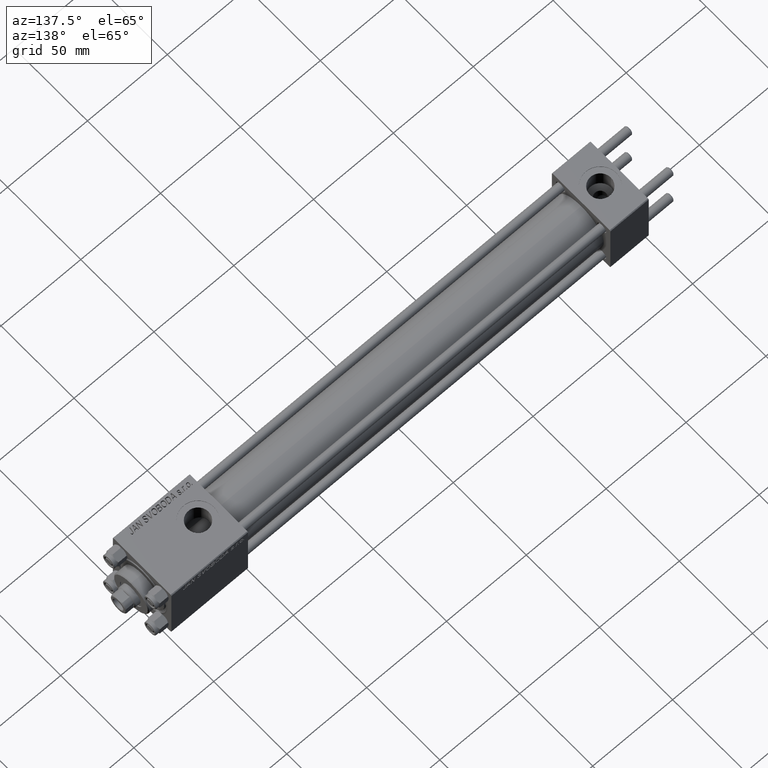
[diagram: clean part render]
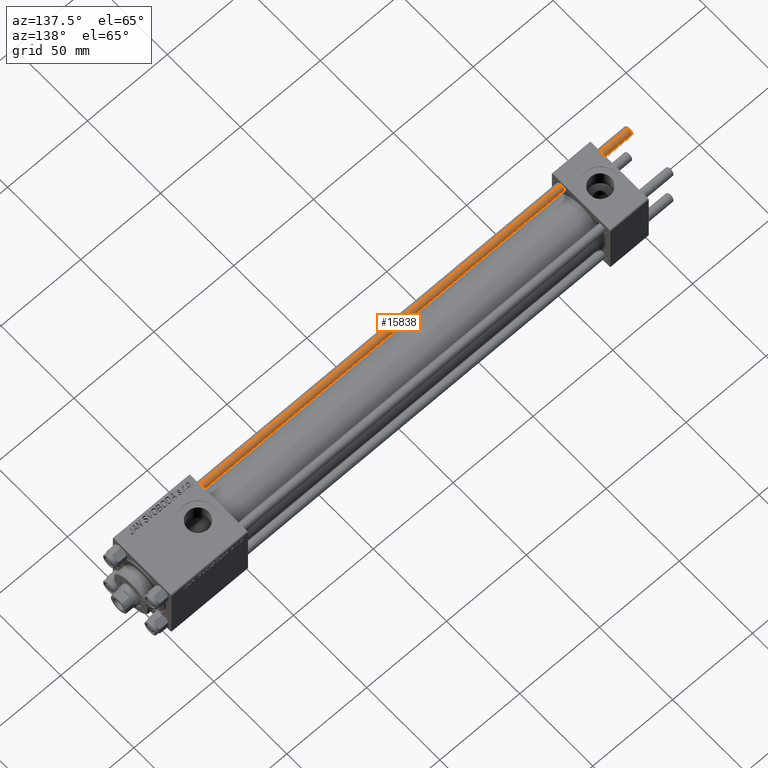
[diagram: same view with one face highlighted and labeled with its STEP entity id]
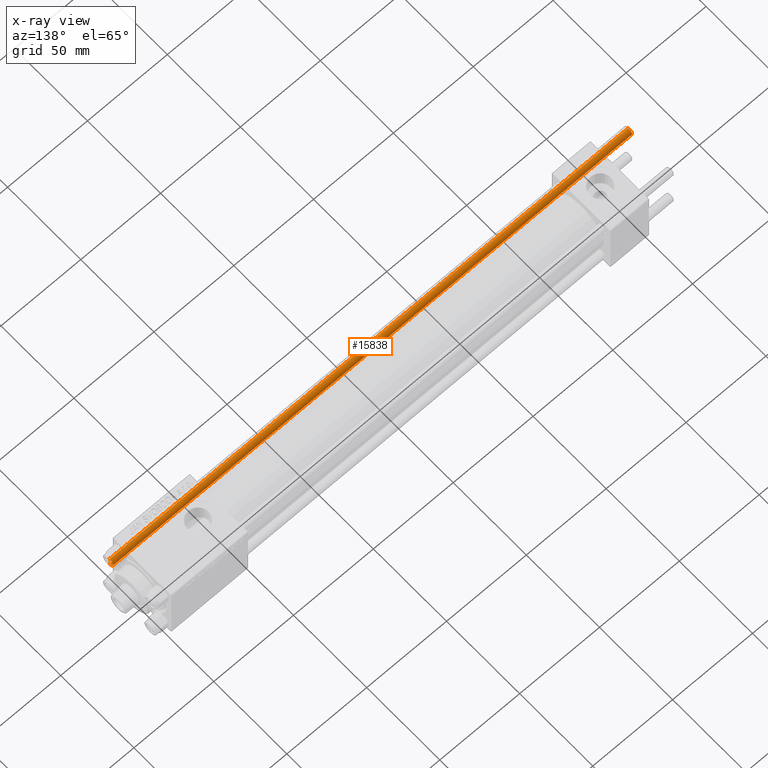
[diagram: x-ray of the same camera — body ghosted, the highlighted face saturated]
A machine part, auxiliary view. The second image highlights one B-rep face of the part: STEP entity #15838.
The next image is the same camera in x-ray: the body ghosted, the highlighted face saturated — about 0% of this face is hidden behind the body in this view.
In plain terms, the highlighted cylindrical surface (edge-blend (fillet) strip) has radius 2.5 mm, axis along (1, -0, 0).
Its self-contained STEP definition (entity closure, byte-faithful):
#80 = CARTESIAN_POINT ( 'NONE',  ( 0.000000000000000000, 0.000000000000000000, 325.5000000000000000 ) ) ;
#2107 = CARTESIAN_POINT ( 'NONE',  ( -2.500000000000000000, 0.000000000000000000, 326.0000000000000000 ) ) ;
#4182 = DIRECTION ( 'NONE',  ( -0.000000000000000000, -0.000000000000000000, -1.000000000000000000 ) ) ;
#6221 = ORIENTED_EDGE ( 'NONE', *, *, #10825, .F. ) ;
#8023 = FACE_OUTER_BOUND ( 'NONE', #40156, .T. ) ;
#10825 = EDGE_CURVE ( 'NONE', #33432, #44361, #15522, .T. ) ;
#11921 = CARTESIAN_POINT ( 'NONE',  ( -2.500000000000000000, 0.000000000000000000, 0.4999999999999449329 ) ) ;
#13651 = DIRECTION ( 'NONE',  ( -0.000000000000000000, -0.000000000000000000, 1.000000000000000000 ) ) ;
#15522 = LINE ( 'NONE', #42457, #43718 ) ;
#15702 = AXIS2_PLACEMENT_3D ( 'NONE', #34968, #45560, #29948 ) ;
#15838 = ADVANCED_FACE ( 'NONE', ( #8023 ), #18624, .T. ) ;
#18624 = CYLINDRICAL_SURFACE ( 'NONE', #15702, 2.500000000000000000 ) ;
#19286 = VERTEX_POINT ( 'NONE', #30737 ) ;
#19832 = ORIENTED_EDGE ( 'NONE', *, *, #20738, .T. ) ;
#20102 = CIRCLE ( 'NONE', #34581, 2.500000000000000000 ) ;
#20738 = EDGE_CURVE ( 'NONE', #19286, #46412, #25016, .T. ) ;
#20944 = DIRECTION ( 'NONE',  ( 1.000000000000000000, 0.000000000000000000, 0.000000000000000000 ) ) ;
#25016 = LINE ( 'NONE', #2107, #36788 ) ;
#25229 = CARTESIAN_POINT ( 'NONE',  ( 0.000000000000000000, 0.000000000000000000, 0.4999999999999449329 ) ) ;
#29883 = EDGE_CURVE ( 'NONE', #46412, #44361, #31906, .T. ) ;
#29948 = DIRECTION ( 'NONE',  ( -1.000000000000000000, 0.000000000000000000, 0.000000000000000000 ) ) ;
#30737 = CARTESIAN_POINT ( 'NONE',  ( -2.500000000000000000, 0.000000000000000000, 325.5000000000000000 ) ) ;
#31906 = CIRCLE ( 'NONE', #42365, 2.500000000000000000 ) ;
#32939 = ORIENTED_EDGE ( 'NONE', *, *, #29883, .T. ) ;
#33432 = VERTEX_POINT ( 'NONE', #44498 ) ;
#34581 = AXIS2_PLACEMENT_3D ( 'NONE', #80, #38114, #46395 ) ;
#34968 = CARTESIAN_POINT ( 'NONE',  ( 0.000000000000000000, 0.000000000000000000, 326.0000000000000000 ) ) ;
#35854 = CARTESIAN_POINT ( 'NONE',  ( 2.500000000000000000, 3.061616997868383141E-16, 0.4999999999999449329 ) ) ;
#36788 = VECTOR ( 'NONE', #39385, 1000.000000000000000 ) ;
#37897 = EDGE_CURVE ( 'NONE', #33432, #19286, #20102, .T. ) ;
#38114 = DIRECTION ( 'NONE',  ( 0.000000000000000000, 0.000000000000000000, -1.000000000000000000 ) ) ;
#38471 = ORIENTED_EDGE ( 'NONE', *, *, #37897, .T. ) ;
#39385 = DIRECTION ( 'NONE',  ( -0.000000000000000000, -0.000000000000000000, -1.000000000000000000 ) ) ;
#40156 = EDGE_LOOP ( 'NONE', ( #6221, #38471, #19832, #32939 ) ) ;
#42365 = AXIS2_PLACEMENT_3D ( 'NONE', #25229, #13651, #20944 ) ;
#42457 = CARTESIAN_POINT ( 'NONE',  ( 2.500000000000000000, 3.061616997868383141E-16, 326.0000000000000000 ) ) ;
#43718 = VECTOR ( 'NONE', #4182, 1000.000000000000000 ) ;
#44361 = VERTEX_POINT ( 'NONE', #35854 ) ;
#44498 = CARTESIAN_POINT ( 'NONE',  ( 2.500000000000000000, 3.061616997868383141E-16, 325.5000000000000000 ) ) ;
#45560 = DIRECTION ( 'NONE',  ( -0.000000000000000000, -0.000000000000000000, -1.000000000000000000 ) ) ;
#46395 = DIRECTION ( 'NONE',  ( 1.000000000000000000, 0.000000000000000000, 0.000000000000000000 ) ) ;
#46412 = VERTEX_POINT ( 'NONE', #11921 ) ;